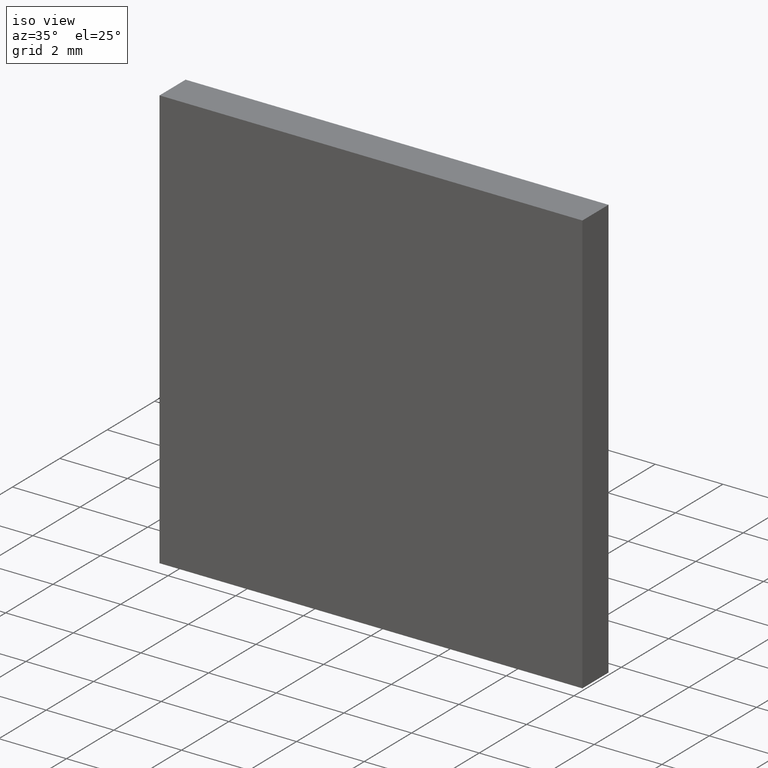
[diagram: clean part render]
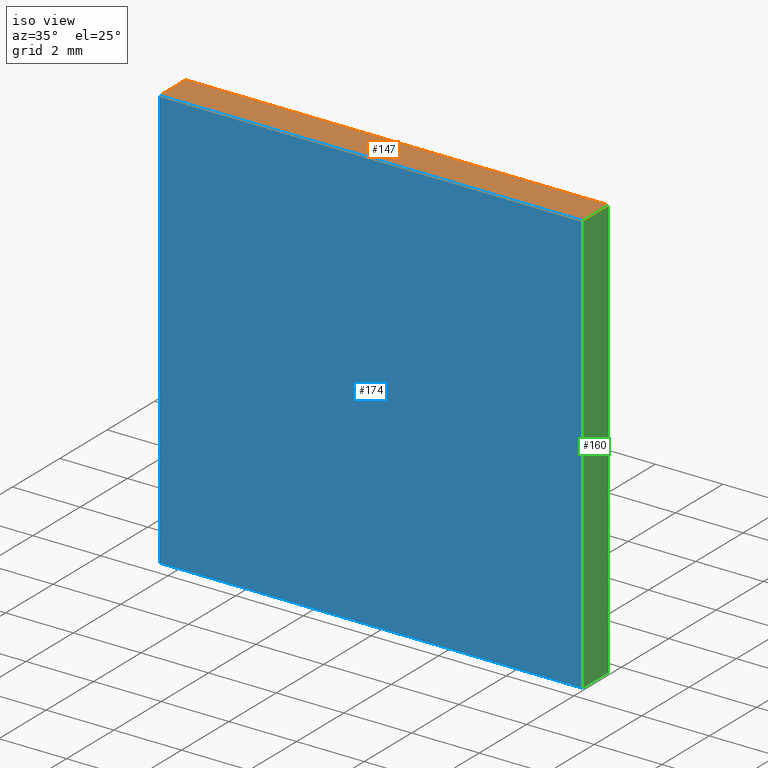
[diagram: same view with three faces highlighted in distinct colors, each labeled with its STEP entity id]
A machine part, iso view with three faces highlighted in distinct colors.
Their STEP definitions:

[orange] entity #147 — the highlighted planar face has unit normal (0, 0, -1).
#1 = CARTESIAN_POINT ( 'NONE',  ( 6.249999999999999100, 1.100000000000000100, 6.249999999999998200 ) ) ;
#5 = VERTEX_POINT ( 'NONE', #49 ) ;
#6 = CARTESIAN_POINT ( 'NONE',  ( 6.249999999999999100, 0.0000000000000000000, 6.249999999999998200 ) ) ;
#14 = CARTESIAN_POINT ( 'NONE',  ( -6.250000000000000900, 0.0000000000000000000, 6.249999999999998200 ) ) ;
#17 = VECTOR ( 'NONE', #176, 1000.000000000000000 ) ;
#24 = LINE ( 'NONE', #166, #47 ) ;
#31 = VERTEX_POINT ( 'NONE', #6 ) ;
#33 = DIRECTION ( 'NONE',  ( 0.0000000000000000000, 0.0000000000000000000, -1.000000000000000000 ) ) ;
#43 = EDGE_CURVE ( 'NONE', #118, #31, #24, .T. ) ;
#46 = CARTESIAN_POINT ( 'NONE',  ( -6.250000000000000900, 1.100000000000000100, 6.249999999999998200 ) ) ;
#47 = VECTOR ( 'NONE', #134, 1000.000000000000000 ) ;
#49 = CARTESIAN_POINT ( 'NONE',  ( -6.250000000000000900, 0.0000000000000000000, 6.249999999999998200 ) ) ;
#59 = ORIENTED_EDGE ( 'NONE', *, *, #197, .T. ) ;
#65 = EDGE_LOOP ( 'NONE', ( #59, #194, #163, #193 ) ) ;
#96 = AXIS2_PLACEMENT_3D ( 'NONE', #46, #33, #139 ) ;
#98 = LINE ( 'NONE', #189, #17 ) ;
#118 = VERTEX_POINT ( 'NONE', #1 ) ;
#123 = DIRECTION ( 'NONE',  ( 1.000000000000000000, 0.0000000000000000000, 0.0000000000000000000 ) ) ;
#126 = EDGE_CURVE ( 'NONE', #158, #118, #98, .T. ) ;
#134 = DIRECTION ( 'NONE',  ( -0.0000000000000000000, -1.000000000000000000, -0.0000000000000000000 ) ) ;
#136 = LINE ( 'NONE', #170, #179 ) ;
#138 = DIRECTION ( 'NONE',  ( -0.0000000000000000000, -1.000000000000000000, -0.0000000000000000000 ) ) ;
#139 = DIRECTION ( 'NONE',  ( -1.000000000000000000, 0.0000000000000000000, -0.0000000000000000000 ) ) ;
#142 = FACE_OUTER_BOUND ( 'NONE', #65, .T. ) ;
#147 = ADVANCED_FACE ( 'NONE', ( #142 ), #172, .F. ) ;
#158 = VERTEX_POINT ( 'NONE', #199 ) ;
#161 = EDGE_CURVE ( 'NONE', #158, #5, #136, .T. ) ;
#163 = ORIENTED_EDGE ( 'NONE', *, *, #126, .F. ) ;
#166 = CARTESIAN_POINT ( 'NONE',  ( 6.249999999999999100, 1.100000000000000100, 6.249999999999998200 ) ) ;
#170 = CARTESIAN_POINT ( 'NONE',  ( -6.250000000000000900, 1.100000000000000100, 6.249999999999998200 ) ) ;
#172 = PLANE ( 'NONE',  #96 ) ;
#176 = DIRECTION ( 'NONE',  ( 1.000000000000000000, 0.0000000000000000000, 0.0000000000000000000 ) ) ;
#179 = VECTOR ( 'NONE', #138, 1000.000000000000000 ) ;
#181 = LINE ( 'NONE', #14, #187 ) ;
#187 = VECTOR ( 'NONE', #123, 1000.000000000000000 ) ;
#189 = CARTESIAN_POINT ( 'NONE',  ( -6.250000000000000900, 1.100000000000000100, 6.249999999999998200 ) ) ;
#193 = ORIENTED_EDGE ( 'NONE', *, *, #161, .T. ) ;
#194 = ORIENTED_EDGE ( 'NONE', *, *, #43, .F. ) ;
#197 = EDGE_CURVE ( 'NONE', #5, #31, #181, .T. ) ;
#199 = CARTESIAN_POINT ( 'NONE',  ( -6.250000000000000900, 1.100000000000000100, 6.249999999999998200 ) ) ;

[blue] entity #174 — the highlighted planar face has unit normal (0, 1, 0).
#5 = VERTEX_POINT ( 'NONE', #49 ) ;
#6 = CARTESIAN_POINT ( 'NONE',  ( 6.249999999999999100, 0.0000000000000000000, 6.249999999999998200 ) ) ;
#9 = CARTESIAN_POINT ( 'NONE',  ( -6.250000000000002700, 0.0000000000000000000, -6.250000000000001800 ) ) ;
#10 = EDGE_CURVE ( 'NONE', #31, #86, #121, .T. ) ;
#14 = CARTESIAN_POINT ( 'NONE',  ( -6.250000000000000900, 0.0000000000000000000, 6.249999999999998200 ) ) ;
#16 = ORIENTED_EDGE ( 'NONE', *, *, #35, .F. ) ;
#27 = DIRECTION ( 'NONE',  ( 1.387778780781445700E-016, 0.0000000000000000000, 1.000000000000000000 ) ) ;
#31 = VERTEX_POINT ( 'NONE', #6 ) ;
#32 = DIRECTION ( 'NONE',  ( 0.0000000000000000000, -0.0000000000000000000, 1.000000000000000000 ) ) ;
#35 = EDGE_CURVE ( 'NONE', #69, #5, #64, .T. ) ;
#38 = ORIENTED_EDGE ( 'NONE', *, *, #10, .F. ) ;
#42 = CARTESIAN_POINT ( 'NONE',  ( 6.249999999999997300, 0.0000000000000000000, -6.250000000000001800 ) ) ;
#49 = CARTESIAN_POINT ( 'NONE',  ( -6.250000000000000900, 0.0000000000000000000, 6.249999999999998200 ) ) ;
#50 = CARTESIAN_POINT ( 'NONE',  ( -6.250000000000002700, 0.0000000000000000000, -6.250000000000001800 ) ) ;
#55 = FACE_OUTER_BOUND ( 'NONE', #180, .T. ) ;
#60 = CARTESIAN_POINT ( 'NONE',  ( 0.0000000000000000000, 0.0000000000000000000, 0.0000000000000000000 ) ) ;
#64 = LINE ( 'NONE', #70, #112 ) ;
#69 = VERTEX_POINT ( 'NONE', #9 ) ;
#70 = CARTESIAN_POINT ( 'NONE',  ( -6.250000000000002700, 0.0000000000000000000, -6.250000000000001800 ) ) ;
#75 = PLANE ( 'NONE',  #191 ) ;
#86 = VERTEX_POINT ( 'NONE', #42 ) ;
#91 = EDGE_CURVE ( 'NONE', #86, #69, #162, .T. ) ;
#107 = ORIENTED_EDGE ( 'NONE', *, *, #197, .F. ) ;
#112 = VECTOR ( 'NONE', #27, 1000.000000000000000 ) ;
#119 = ORIENTED_EDGE ( 'NONE', *, *, #91, .F. ) ;
#121 = LINE ( 'NONE', #153, #200 ) ;
#123 = DIRECTION ( 'NONE',  ( 1.000000000000000000, 0.0000000000000000000, 0.0000000000000000000 ) ) ;
#124 = DIRECTION ( 'NONE',  ( 0.0000000000000000000, 1.000000000000000000, 0.0000000000000000000 ) ) ;
#129 = DIRECTION ( 'NONE',  ( -1.000000000000000000, -0.0000000000000000000, -0.0000000000000000000 ) ) ;
#131 = VECTOR ( 'NONE', #129, 1000.000000000000000 ) ;
#144 = DIRECTION ( 'NONE',  ( -1.387778780781445700E-016, -0.0000000000000000000, -1.000000000000000000 ) ) ;
#153 = CARTESIAN_POINT ( 'NONE',  ( 6.249999999999997300, 0.0000000000000000000, -6.250000000000001800 ) ) ;
#162 = LINE ( 'NONE', #50, #131 ) ;
#174 = ADVANCED_FACE ( 'NONE', ( #55 ), #75, .F. ) ;
#180 = EDGE_LOOP ( 'NONE', ( #38, #107, #16, #119 ) ) ;
#181 = LINE ( 'NONE', #14, #187 ) ;
#187 = VECTOR ( 'NONE', #123, 1000.000000000000000 ) ;
#191 = AXIS2_PLACEMENT_3D ( 'NONE', #60, #124, #32 ) ;
#197 = EDGE_CURVE ( 'NONE', #5, #31, #181, .T. ) ;
#200 = VECTOR ( 'NONE', #144, 1000.000000000000000 ) ;

[green] entity #160 — the highlighted planar face has unit normal (-1, 0, 0).
#1 = CARTESIAN_POINT ( 'NONE',  ( 6.249999999999999100, 1.100000000000000100, 6.249999999999998200 ) ) ;
#6 = CARTESIAN_POINT ( 'NONE',  ( 6.249999999999999100, 0.0000000000000000000, 6.249999999999998200 ) ) ;
#10 = EDGE_CURVE ( 'NONE', #31, #86, #121, .T. ) ;
#24 = LINE ( 'NONE', #166, #47 ) ;
#30 = EDGE_CURVE ( 'NONE', #100, #86, #78, .T. ) ;
#31 = VERTEX_POINT ( 'NONE', #6 ) ;
#37 = ORIENTED_EDGE ( 'NONE', *, *, #10, .T. ) ;
#42 = CARTESIAN_POINT ( 'NONE',  ( 6.249999999999997300, 0.0000000000000000000, -6.250000000000001800 ) ) ;
#43 = EDGE_CURVE ( 'NONE', #118, #31, #24, .T. ) ;
#47 = VECTOR ( 'NONE', #134, 1000.000000000000000 ) ;
#53 = VECTOR ( 'NONE', #186, 1000.000000000000000 ) ;
#54 = DIRECTION ( 'NONE',  ( -0.0000000000000000000, -1.000000000000000000, -0.0000000000000000000 ) ) ;
#62 = FACE_OUTER_BOUND ( 'NONE', #149, .T. ) ;
#73 = ORIENTED_EDGE ( 'NONE', *, *, #30, .F. ) ;
#78 = LINE ( 'NONE', #182, #165 ) ;
#86 = VERTEX_POINT ( 'NONE', #42 ) ;
#89 = DIRECTION ( 'NONE',  ( 1.387778780781445700E-016, 0.0000000000000000000, 1.000000000000000000 ) ) ;
#95 = AXIS2_PLACEMENT_3D ( 'NONE', #125, #156, #89 ) ;
#100 = VERTEX_POINT ( 'NONE', #146 ) ;
#108 = CARTESIAN_POINT ( 'NONE',  ( 6.249999999999997300, 1.100000000000000100, -6.250000000000001800 ) ) ;
#118 = VERTEX_POINT ( 'NONE', #1 ) ;
#121 = LINE ( 'NONE', #153, #200 ) ;
#125 = CARTESIAN_POINT ( 'NONE',  ( 6.249999999999997300, 1.100000000000000100, -6.250000000000001800 ) ) ;
#134 = DIRECTION ( 'NONE',  ( -0.0000000000000000000, -1.000000000000000000, -0.0000000000000000000 ) ) ;
#144 = DIRECTION ( 'NONE',  ( -1.387778780781445700E-016, -0.0000000000000000000, -1.000000000000000000 ) ) ;
#146 = CARTESIAN_POINT ( 'NONE',  ( 6.249999999999997300, 1.100000000000000100, -6.250000000000001800 ) ) ;
#148 = LINE ( 'NONE', #108, #53 ) ;
#149 = EDGE_LOOP ( 'NONE', ( #37, #73, #196, #155 ) ) ;
#153 = CARTESIAN_POINT ( 'NONE',  ( 6.249999999999997300, 0.0000000000000000000, -6.250000000000001800 ) ) ;
#155 = ORIENTED_EDGE ( 'NONE', *, *, #43, .T. ) ;
#156 = DIRECTION ( 'NONE',  ( -1.000000000000000000, 0.0000000000000000000, 1.387778780781445700E-016 ) ) ;
#157 = PLANE ( 'NONE',  #95 ) ;
#160 = ADVANCED_FACE ( 'NONE', ( #62 ), #157, .F. ) ;
#165 = VECTOR ( 'NONE', #54, 1000.000000000000000 ) ;
#166 = CARTESIAN_POINT ( 'NONE',  ( 6.249999999999999100, 1.100000000000000100, 6.249999999999998200 ) ) ;
#182 = CARTESIAN_POINT ( 'NONE',  ( 6.249999999999997300, 1.100000000000000100, -6.250000000000001800 ) ) ;
#183 = EDGE_CURVE ( 'NONE', #118, #100, #148, .T. ) ;
#186 = DIRECTION ( 'NONE',  ( -1.387778780781445700E-016, -0.0000000000000000000, -1.000000000000000000 ) ) ;
#196 = ORIENTED_EDGE ( 'NONE', *, *, #183, .F. ) ;
#200 = VECTOR ( 'NONE', #144, 1000.000000000000000 ) ;